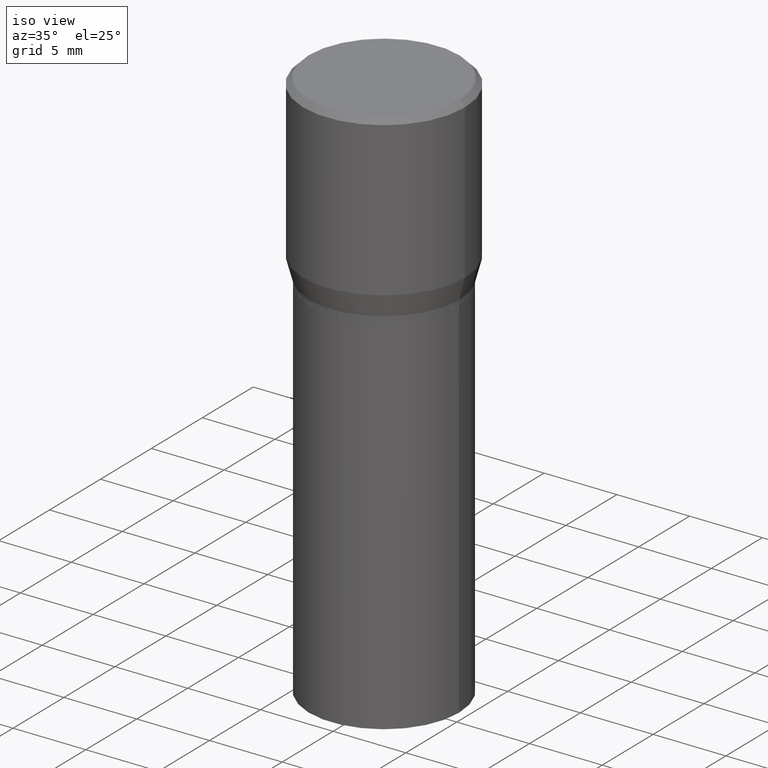
[diagram: clean part render]
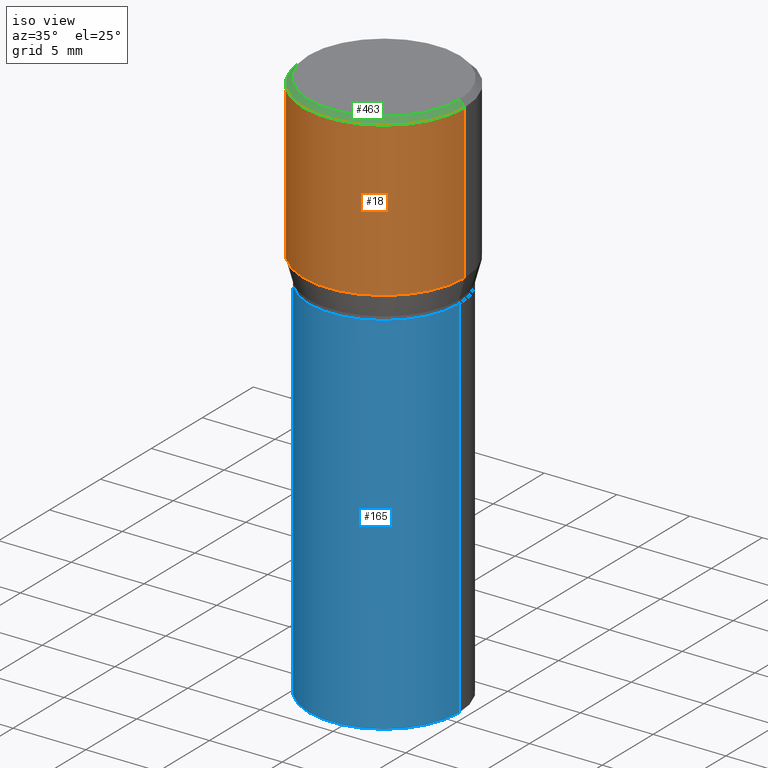
[diagram: same view with three faces highlighted in distinct colors, each labeled with its STEP entity id]
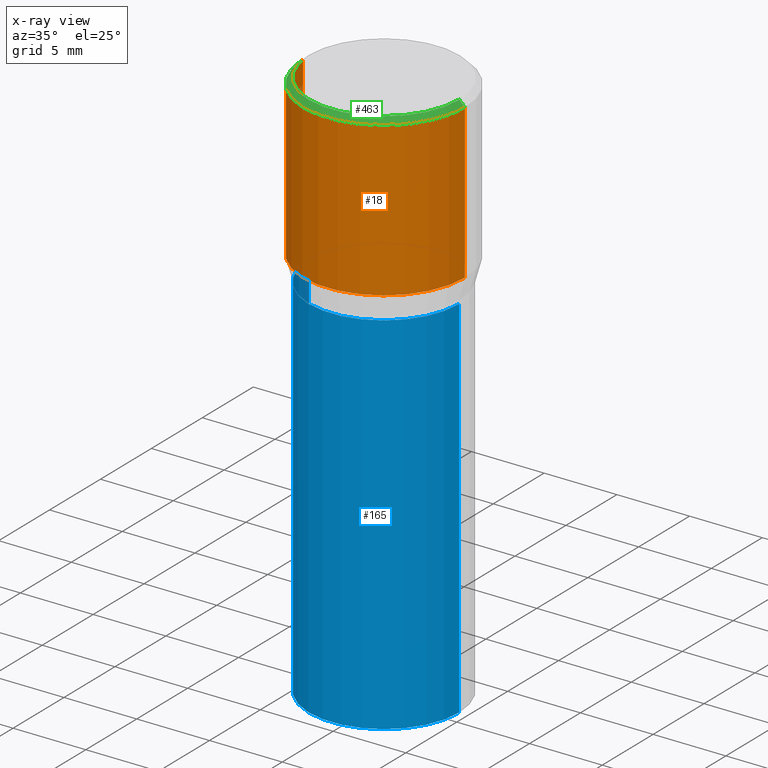
[diagram: x-ray of the same camera — body ghosted, the three highlighted faces saturated]
A machine part, iso view with three faces highlighted in distinct colors.
The next image is the same camera in x-ray (body ghosted, the three faces saturated) — at least one of them is partly hidden behind the body in this view.
Their STEP definitions:

[orange] entity #18 — the highlighted cylindrical surface (partial cylindrical patch) has radius 5.5562 mm, axis along (-0, 0, 1).
#18 = ADVANCED_FACE ( 'NONE', ( #457 ), #388, .T. ) ;
#19 = EDGE_LOOP ( 'NONE', ( #152, #453, #383, #412 ) ) ;
#20 = VERTEX_POINT ( 'NONE', #69 ) ;
#37 = EDGE_CURVE ( 'NONE', #199, #20, #309, .T. ) ;
#64 = CIRCLE ( 'NONE', #232, 0.2187500000000000000 ) ;
#69 = CARTESIAN_POINT ( 'NONE',  ( 0.2187500000000000000, -1.579895305826517922E-15, -0.01499999999999999944 ) ) ;
#92 = VERTEX_POINT ( 'NONE', #224 ) ;
#98 = DIRECTION ( 'NONE',  ( -2.445468806185136877E-29, 3.491481338843145188E-15, 1.000000000000000000 ) ) ;
#104 = DIRECTION ( 'NONE',  ( 1.000000000000000000, -6.982962677686265133E-15, 0.000000000000000000 ) ) ;
#107 = CARTESIAN_POINT ( 'NONE',  ( 1.055448208544146876E-29, -1.506900319041867721E-15, -0.4315934048615475138 ) ) ;
#120 = AXIS2_PLACEMENT_3D ( 'NONE', #107, #462, #104 ) ;
#142 = DIRECTION ( 'NONE',  ( -2.445468806185136877E-29, 3.491481338843145188E-15, 1.000000000000000000 ) ) ;
#151 = CARTESIAN_POINT ( 'NONE',  ( 0.2187500000000000000, -3.034423404785738170E-15, -0.4315934048615475138 ) ) ;
#152 = ORIENTED_EDGE ( 'NONE', *, *, #346, .F. ) ;
#160 = VECTOR ( 'NONE', #142, 39.37007874015748143 ) ;
#177 = CARTESIAN_POINT ( 'NONE',  ( 0.000000000000000000, 0.000000000000000000, 0.000000000000000000 ) ) ;
#199 = VERTEX_POINT ( 'NONE', #151 ) ;
#209 = CARTESIAN_POINT ( 'NONE',  ( 0.2187500000000000000, -1.527523085743870843E-15, 1.066663669705360885E-29 ) ) ;
#224 = CARTESIAN_POINT ( 'NONE',  ( -0.2187500000000000000, 4.741191543335144142E-17, -0.4315934048615475138 ) ) ;
#232 = AXIS2_PLACEMENT_3D ( 'NONE', #320, #354, #432 ) ;
#237 = DIRECTION ( 'NONE',  ( -2.445468806185136597E-29, 3.491481338843145583E-15, 1.000000000000000000 ) ) ;
#309 = LINE ( 'NONE', #209, #372 ) ;
#320 = CARTESIAN_POINT ( 'NONE',  ( 3.668203209277705088E-31, -5.237222008264718399E-17, -0.01499999999999999944 ) ) ;
#329 = CARTESIAN_POINT ( 'NONE',  ( -0.2187500000000000000, 7.746759649129616577E-16, -0.01499999999999999944 ) ) ;
#346 = EDGE_CURVE ( 'NONE', #92, #426, #434, .T. ) ;
#354 = DIRECTION ( 'NONE',  ( -2.445468806185136597E-29, 3.491481338843145583E-15, 1.000000000000000000 ) ) ;
#367 = CIRCLE ( 'NONE', #120, 0.2187500000000000000 ) ;
#372 = VECTOR ( 'NONE', #98, 39.37007874015748143 ) ;
#376 = EDGE_CURVE ( 'NONE', #426, #20, #64, .T. ) ;
#383 = ORIENTED_EDGE ( 'NONE', *, *, #37, .T. ) ;
#385 = DIRECTION ( 'NONE',  ( 1.000000000000000000, -6.982962677686266711E-15, 4.876176775795935232E-29 ) ) ;
#388 = CYLINDRICAL_SURFACE ( 'NONE', #404, 0.2187500000000000000 ) ;
#391 = EDGE_CURVE ( 'NONE', #92, #199, #367, .T. ) ;
#404 = AXIS2_PLACEMENT_3D ( 'NONE', #177, #237, #385 ) ;
#412 = ORIENTED_EDGE ( 'NONE', *, *, #376, .F. ) ;
#426 = VERTEX_POINT ( 'NONE', #329 ) ;
#432 = DIRECTION ( 'NONE',  ( 1.000000000000000000, -6.982962677686266711E-15, 0.000000000000000000 ) ) ;
#434 = LINE ( 'NONE', #464, #160 ) ;
#453 = ORIENTED_EDGE ( 'NONE', *, *, #391, .T. ) ;
#457 = FACE_OUTER_BOUND ( 'NONE', #19, .T. ) ;
#462 = DIRECTION ( 'NONE',  ( -2.445468806185136597E-29, 3.491481338843145583E-15, 1.000000000000000000 ) ) ;
#464 = CARTESIAN_POINT ( 'NONE',  ( -0.2187500000000000000, 1.554312234475219157E-15, -1.076017050993260622E-29 ) ) ;

[blue] entity #165 — the highlighted cylindrical surface (partial cylindrical patch) has radius 5.1587 mm, axis along (-0, 0, 1).
#3 = VECTOR ( 'NONE', #75, 39.37007874015748143 ) ;
#5 = VERTEX_POINT ( 'NONE', #169 ) ;
#11 = CARTESIAN_POINT ( 'NONE',  ( 0.000000000000000000, 0.000000000000000000, 0.000000000000000000 ) ) ;
#21 = FACE_OUTER_BOUND ( 'NONE', #197, .T. ) ;
#24 = AXIS2_PLACEMENT_3D ( 'NONE', #246, #394, #328 ) ;
#50 = EDGE_CURVE ( 'NONE', #67, #101, #324, .T. ) ;
#67 = VERTEX_POINT ( 'NONE', #214 ) ;
#75 = DIRECTION ( 'NONE',  ( -2.445468806185136877E-29, 3.491481338843145188E-15, 1.000000000000000000 ) ) ;
#101 = VERTEX_POINT ( 'NONE', #368 ) ;
#108 = AXIS2_PLACEMENT_3D ( 'NONE', #11, #159, #449 ) ;
#110 = ORIENTED_EDGE ( 'NONE', *, *, #262, .F. ) ;
#111 = ORIENTED_EDGE ( 'NONE', *, *, #226, .F. ) ;
#118 = DIRECTION ( 'NONE',  ( -2.445468806185136597E-29, 3.491481338843145583E-15, 1.000000000000000000 ) ) ;
#136 = VECTOR ( 'NONE', #353, 39.37007874015748143 ) ;
#141 = ORIENTED_EDGE ( 'NONE', *, *, #50, .T. ) ;
#159 = DIRECTION ( 'NONE',  ( -2.445468806185136597E-29, 3.491481338843145583E-15, 1.000000000000000000 ) ) ;
#165 = ADVANCED_FACE ( 'NONE', ( #21 ), #300, .T. ) ;
#169 = CARTESIAN_POINT ( 'NONE',  ( -0.2031000000000000028, -2.048369042514382480E-15, -0.5000000000000001110 ) ) ;
#183 = CARTESIAN_POINT ( 'NONE',  ( 3.668203209277704895E-29, -5.237222008264718177E-15, -1.500000000000000222 ) ) ;
#186 = CARTESIAN_POINT ( 'NONE',  ( -0.2031000000000000028, -2.048369042514382480E-15, -1.500000000000000222 ) ) ;
#197 = EDGE_LOOP ( 'NONE', ( #110, #256, #141, #111 ) ) ;
#214 = CARTESIAN_POINT ( 'NONE',  ( 0.2031000000000000028, -6.655461728102798952E-15, -1.500000000000000222 ) ) ;
#226 = EDGE_CURVE ( 'NONE', #5, #101, #430, .T. ) ;
#239 = EDGE_CURVE ( 'NONE', #344, #67, #334, .T. ) ;
#246 = CARTESIAN_POINT ( 'NONE',  ( 1.222734403092568719E-29, -1.745740669421573186E-15, -0.5000000000000001110 ) ) ;
#256 = ORIENTED_EDGE ( 'NONE', *, *, #239, .T. ) ;
#262 = EDGE_CURVE ( 'NONE', #344, #5, #289, .T. ) ;
#289 = LINE ( 'NONE', #399, #3 ) ;
#300 = CYLINDRICAL_SURFACE ( 'NONE', #108, 0.2031000000000000028 ) ;
#324 = LINE ( 'NONE', #397, #136 ) ;
#328 = DIRECTION ( 'NONE',  ( 1.000000000000000000, -6.982962677686265922E-15, 0.000000000000000000 ) ) ;
#334 = CIRCLE ( 'NONE', #357, 0.2031000000000000028 ) ;
#344 = VERTEX_POINT ( 'NONE', #186 ) ;
#353 = DIRECTION ( 'NONE',  ( -2.445468806185136877E-29, 3.491481338843145188E-15, 1.000000000000000000 ) ) ;
#357 = AXIS2_PLACEMENT_3D ( 'NONE', #183, #118, #433 ) ;
#368 = CARTESIAN_POINT ( 'NONE',  ( 0.2031000000000000028, -3.163980389259653764E-15, -0.5000000000000001110 ) ) ;
#394 = DIRECTION ( 'NONE',  ( -2.445468806185136597E-29, 3.491481338843145583E-15, 1.000000000000000000 ) ) ;
#397 = CARTESIAN_POINT ( 'NONE',  ( 0.2031000000000000028, -1.418239719838080775E-15, 9.903515031641546145E-30 ) ) ;
#399 = CARTESIAN_POINT ( 'NONE',  ( -0.2031000000000000028, 1.443112296328763497E-15, -9.990357168307714203E-30 ) ) ;
#430 = CIRCLE ( 'NONE', #24, 0.2031000000000000028 ) ;
#433 = DIRECTION ( 'NONE',  ( 1.000000000000000000, -6.982962677686264344E-15, 0.000000000000000000 ) ) ;
#449 = DIRECTION ( 'NONE',  ( 1.000000000000000000, -6.982962677686266711E-15, 4.876176775795935793E-29 ) ) ;

[green] entity #463 — the highlighted conical surface has half-angle 45 deg.
#1 = ORIENTED_EDGE ( 'NONE', *, *, #121, .T. ) ;
#20 = VERTEX_POINT ( 'NONE', #69 ) ;
#45 = EDGE_CURVE ( 'NONE', #431, #20, #103, .T. ) ;
#64 = CIRCLE ( 'NONE', #232, 0.2187500000000000000 ) ;
#69 = CARTESIAN_POINT ( 'NONE',  ( 0.2187500000000000000, -1.579895305826517922E-15, -0.01499999999999999944 ) ) ;
#77 = EDGE_CURVE ( 'NONE', #129, #431, #395, .T. ) ;
#103 = LINE ( 'NONE', #348, #248 ) ;
#119 = AXIS2_PLACEMENT_3D ( 'NONE', #461, #143, #244 ) ;
#121 = EDGE_CURVE ( 'NONE', #129, #426, #401, .T. ) ;
#129 = VERTEX_POINT ( 'NONE', #337 ) ;
#143 = DIRECTION ( 'NONE',  ( -2.445468806185136597E-29, 3.491481338843145583E-15, 1.000000000000000000 ) ) ;
#172 = DIRECTION ( 'NONE',  ( 0.7071067811865452413, -7.319954787623248157E-15, -0.7071067811865497932 ) ) ;
#191 = DIRECTION ( 'NONE',  ( -1.000000000000000000, 6.982962677686266711E-15, 0.000000000000000000 ) ) ;
#218 = CARTESIAN_POINT ( 'NONE',  ( 3.668203209277705088E-31, -5.237222008264718399E-17, -0.01499999999999999944 ) ) ;
#232 = AXIS2_PLACEMENT_3D ( 'NONE', #320, #354, #432 ) ;
#243 = ORIENTED_EDGE ( 'NONE', *, *, #45, .F. ) ;
#244 = DIRECTION ( 'NONE',  ( 1.000000000000000000, -6.982962677686266711E-15, 4.875065411617369217E-29 ) ) ;
#248 = VECTOR ( 'NONE', #172, 39.37007874015748143 ) ;
#254 = CONICAL_SURFACE ( 'NONE', #378, 0.2187500000000000000, 0.7853981633974450594 ) ;
#264 = CARTESIAN_POINT ( 'NONE',  ( -0.2187500000000000000, 1.475150865661223567E-15, -0.01499999999999999944 ) ) ;
#275 = ORIENTED_EDGE ( 'NONE', *, *, #77, .F. ) ;
#294 = VECTOR ( 'NONE', #411, 39.37007874015748143 ) ;
#320 = CARTESIAN_POINT ( 'NONE',  ( 3.668203209277705088E-31, -5.237222008264718399E-17, -0.01499999999999999944 ) ) ;
#329 = CARTESIAN_POINT ( 'NONE',  ( -0.2187500000000000000, 7.746759649129616577E-16, -0.01499999999999999944 ) ) ;
#330 = FACE_OUTER_BOUND ( 'NONE', #413, .T. ) ;
#335 = CARTESIAN_POINT ( 'NONE',  ( 0.2037499999999999867, -1.475466312070559275E-15, 1.060151966214670170E-16 ) ) ;
#337 = CARTESIAN_POINT ( 'NONE',  ( -0.2037499999999999867, 1.448964755619900421E-15, 1.060151966214468518E-16 ) ) ;
#348 = CARTESIAN_POINT ( 'NONE',  ( 0.2187500000000000000, -1.553106157095169608E-15, -0.01499999999999999944 ) ) ;
#354 = DIRECTION ( 'NONE',  ( -2.445468806185136597E-29, 3.491481338843145583E-15, 1.000000000000000000 ) ) ;
#366 = DIRECTION ( 'NONE',  ( 2.445468806185136597E-29, -3.491481338843145583E-15, -1.000000000000000000 ) ) ;
#376 = EDGE_CURVE ( 'NONE', #426, #20, #64, .T. ) ;
#378 = AXIS2_PLACEMENT_3D ( 'NONE', #218, #366, #191 ) ;
#395 = CIRCLE ( 'NONE', #119, 0.2037499999999999867 ) ;
#401 = LINE ( 'NONE', #264, #294 ) ;
#411 = DIRECTION ( 'NONE',  ( -0.7071067811865452413, 2.468850131082233000E-15, -0.7071067811865497932 ) ) ;
#413 = EDGE_LOOP ( 'NONE', ( #243, #275, #1, #442 ) ) ;
#426 = VERTEX_POINT ( 'NONE', #329 ) ;
#431 = VERTEX_POINT ( 'NONE', #335 ) ;
#432 = DIRECTION ( 'NONE',  ( 1.000000000000000000, -6.982962677686266711E-15, 0.000000000000000000 ) ) ;
#442 = ORIENTED_EDGE ( 'NONE', *, *, #376, .T. ) ;
#461 = CARTESIAN_POINT ( 'NONE',  ( -2.592568563193567003E-45, 3.701500806376036554E-31, 1.060151966214568974E-16 ) ) ;
#463 = ADVANCED_FACE ( 'NONE', ( #330 ), #254, .T. ) ;